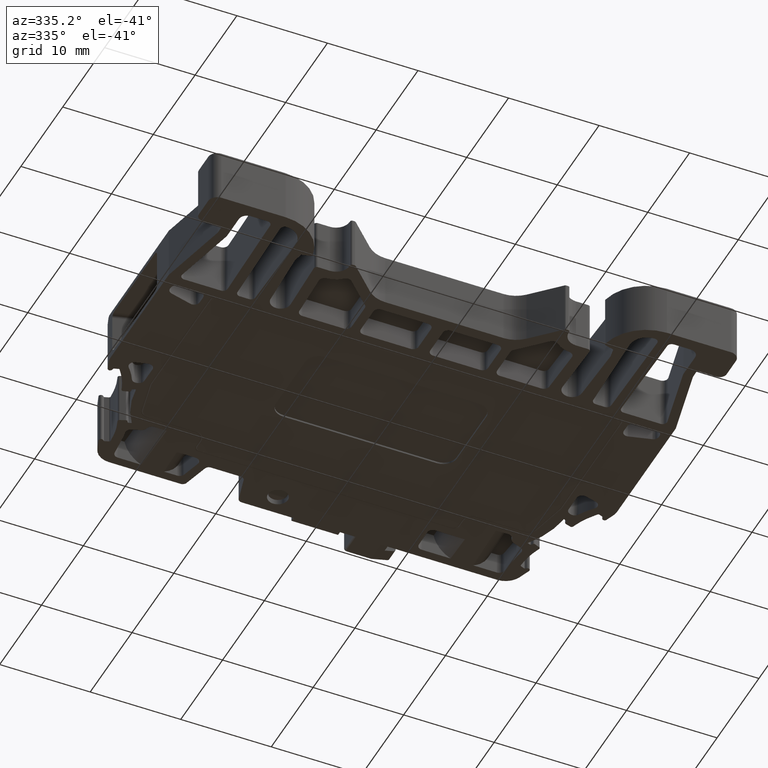
[diagram: clean part render]
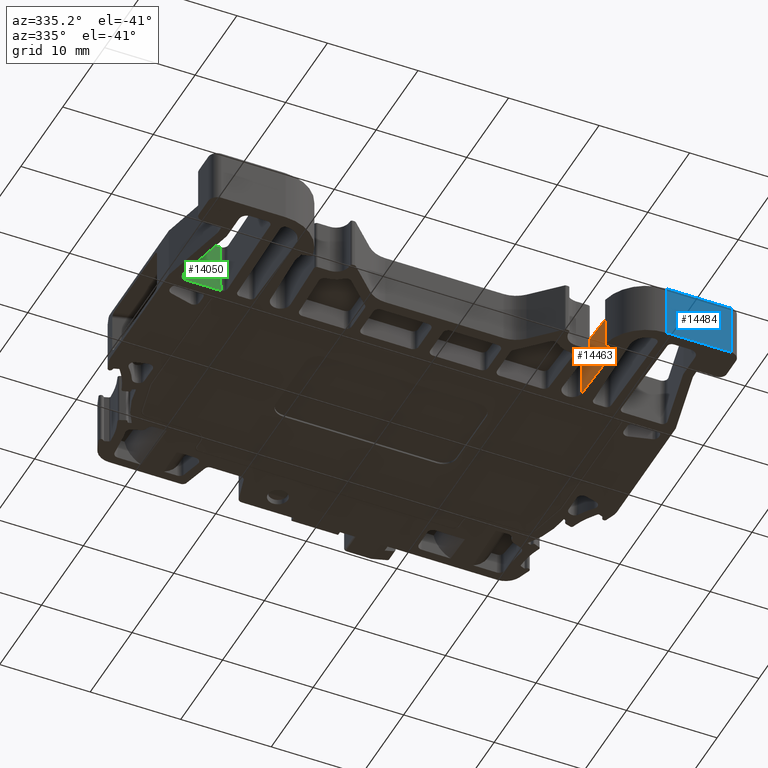
[diagram: same view with three faces highlighted in distinct colors, each labeled with its STEP entity id]
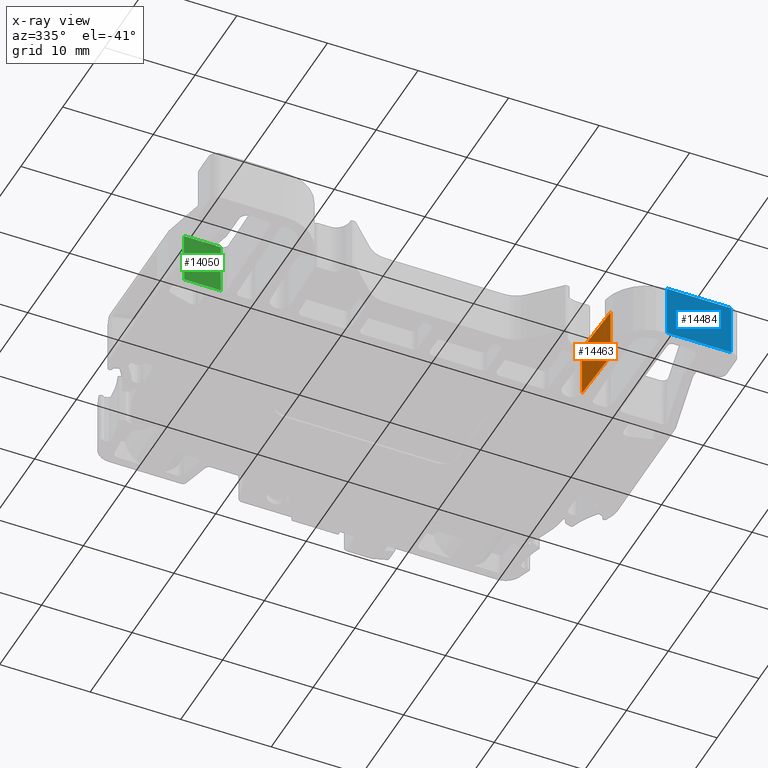
[diagram: x-ray of the same camera — body ghosted, the three highlighted faces saturated]
A machine part, auxiliary view with three faces highlighted in distinct colors.
The next image is the same camera in x-ray (body ghosted, the three faces saturated) — at least one of them is partly hidden behind the body in this view.
Their STEP definitions:

[orange] entity #14463 — the highlighted planar face has unit normal (-0.9992, -0.0394, 0).
#5998 = DIRECTION ( 'NONE',  ( 0.0000000000000000000, 0.0000000000000000000, 1.000000000000000000 ) ) ;
#6022 = CARTESIAN_POINT ( 'NONE',  ( 1036.133189839726100, 939.0288459127309600, -5.850000000000000500 ) ) ;
#6051 = LINE ( 'NONE', #6022, #22661 ) ;
#6076 = DIRECTION ( 'NONE',  ( 0.0000000000000000000, 0.0000000000000000000, 1.000000000000000000 ) ) ;
#6078 = LINE ( 'NONE', #6082, #31423 ) ;
#6082 = CARTESIAN_POINT ( 'NONE',  ( 1036.382435074819800, 932.7107192491199600, 0.0000000000000000000 ) ) ;
#6098 = CARTESIAN_POINT ( 'NONE',  ( 1036.382435074819800, 932.7107192491199600, -5.850000000000000500 ) ) ;
#6124 = LINE ( 'NONE', #6098, #31415 ) ;
#6126 = DIRECTION ( 'NONE',  ( 0.03941857001310068700, -0.9992227861383676800, 0.0000000000000000000 ) ) ;
#10522 = EDGE_LOOP ( 'NONE', ( #14132, #14053, #14062, #13946 ) ) ;
#11305 = EDGE_CURVE ( 'NONE', #18130, #12467, #6051, .T. ) ;
#11326 = EDGE_CURVE ( 'NONE', #18109, #12470, #6124, .T. ) ;
#11327 = EDGE_CURVE ( 'NONE', #12467, #12470, #6078, .T. ) ;
#12467 = VERTEX_POINT ( 'NONE', #41932 ) ;
#12470 = VERTEX_POINT ( 'NONE', #41937 ) ;
#13946 = ORIENTED_EDGE ( 'NONE', *, *, #11326, .T. ) ;
#14053 = ORIENTED_EDGE ( 'NONE', *, *, #11305, .F. ) ;
#14062 = ORIENTED_EDGE ( 'NONE', *, *, #14722, .T. ) ;
#14132 = ORIENTED_EDGE ( 'NONE', *, *, #11327, .F. ) ;
#14463 = ADVANCED_FACE ( 'NONE', ( #35616 ), #35618, .T. ) ;
#14722 = EDGE_CURVE ( 'NONE', #18130, #18109, #25907, .T. ) ;
#18109 = VERTEX_POINT ( 'NONE', #21409 ) ;
#18130 = VERTEX_POINT ( 'NONE', #21447 ) ;
#21409 = CARTESIAN_POINT ( 'NONE',  ( 1036.382435074819800, 932.7107192491199600, -5.850000000000000500 ) ) ;
#21447 = CARTESIAN_POINT ( 'NONE',  ( 1036.133189839726100, 939.0288459127309600, -5.850000000000000500 ) ) ;
#22661 = VECTOR ( 'NONE', #5998, 1000.000000000000000 ) ;
#25883 = CARTESIAN_POINT ( 'NONE',  ( 1036.382435074819800, 932.7107192491199600, -5.850000000000000500 ) ) ;
#25885 = DIRECTION ( 'NONE',  ( 0.03941857001310068700, -0.9992227861383676800, 0.0000000000000000000 ) ) ;
#25907 = LINE ( 'NONE', #25883, #26577 ) ;
#26577 = VECTOR ( 'NONE', #25885, 1000.000000000000100 ) ;
#31415 = VECTOR ( 'NONE', #6076, 1000.000000000000000 ) ;
#31423 = VECTOR ( 'NONE', #6126, 1000.000000000000100 ) ;
#32960 = AXIS2_PLACEMENT_3D ( 'NONE', #35580, #35573, #35582 ) ;
#35573 = DIRECTION ( 'NONE',  ( -0.9992227861383677900, -0.03941857001310069400, 0.0000000000000000000 ) ) ;
#35580 = CARTESIAN_POINT ( 'NONE',  ( 1036.382435074819800, 932.7107192491199600, -5.850000000000000500 ) ) ;
#35582 = DIRECTION ( 'NONE',  ( 0.03941857001310068700, -0.9992227861383676800, 0.0000000000000000000 ) ) ;
#35616 = FACE_OUTER_BOUND ( 'NONE', #10522, .T. ) ;
#35618 = PLANE ( 'NONE',  #32960 ) ;
#41932 = CARTESIAN_POINT ( 'NONE',  ( 1036.133189839726100, 939.0288459127309600, 0.0000000000000000000 ) ) ;
#41937 = CARTESIAN_POINT ( 'NONE',  ( 1036.382435074819800, 932.7107192491199600, 0.0000000000000000000 ) ) ;

[blue] entity #14484 — the highlighted planar face has unit normal (0, -1, 0).
#5970 = CARTESIAN_POINT ( 'NONE',  ( 1047.093419528580200, 927.0662631693588800, 0.0000000000000000000 ) ) ;
#5975 = DIRECTION ( 'NONE',  ( 0.9999999999999249500, 3.872296631259589400E-007, 0.0000000000000000000 ) ) ;
#5981 = LINE ( 'NONE', #5970, #22588 ) ;
#6106 = CARTESIAN_POINT ( 'NONE',  ( 1047.093419528580200, 927.0662631693588800, -5.850000000000000500 ) ) ;
#6111 = DIRECTION ( 'NONE',  ( 0.0000000000000000000, 0.0000000000000000000, 1.000000000000000000 ) ) ;
#6132 = LINE ( 'NONE', #6106, #31430 ) ;
#6260 = LINE ( 'NONE', #6321, #31383 ) ;
#6313 = DIRECTION ( 'NONE',  ( 0.0000000000000000000, 0.0000000000000000000, 1.000000000000000000 ) ) ;
#6321 = CARTESIAN_POINT ( 'NONE',  ( 1040.018416155973700, 927.0662604297081100, -5.850000000000000500 ) ) ;
#9227 = EDGE_LOOP ( 'NONE', ( #14119, #13948, #14144, #14116 ) ) ;
#11288 = EDGE_CURVE ( 'NONE', #12465, #12454, #5981, .T. ) ;
#11319 = EDGE_CURVE ( 'NONE', #18133, #12454, #6132, .T. ) ;
#11350 = EDGE_CURVE ( 'NONE', #18154, #12465, #6260, .T. ) ;
#12454 = VERTEX_POINT ( 'NONE', #41781 ) ;
#12465 = VERTEX_POINT ( 'NONE', #41829 ) ;
#13948 = ORIENTED_EDGE ( 'NONE', *, *, #11350, .F. ) ;
#14116 = ORIENTED_EDGE ( 'NONE', *, *, #11319, .T. ) ;
#14119 = ORIENTED_EDGE ( 'NONE', *, *, #11288, .F. ) ;
#14144 = ORIENTED_EDGE ( 'NONE', *, *, #14690, .T. ) ;
#14484 = ADVANCED_FACE ( 'NONE', ( #35711 ), #35677, .T. ) ;
#14690 = EDGE_CURVE ( 'NONE', #18154, #18133, #25799, .T. ) ;
#18133 = VERTEX_POINT ( 'NONE', #21393 ) ;
#18154 = VERTEX_POINT ( 'NONE', #21513 ) ;
#21393 = CARTESIAN_POINT ( 'NONE',  ( 1047.093419528580200, 927.0662631693588800, -5.850000000000000500 ) ) ;
#21513 = CARTESIAN_POINT ( 'NONE',  ( 1040.018416155973700, 927.0662604297081100, -5.850000000000000500 ) ) ;
#22588 = VECTOR ( 'NONE', #5975, 1000.000000000000100 ) ;
#25790 = CARTESIAN_POINT ( 'NONE',  ( 1047.093419528580200, 927.0662631693588800, -5.850000000000000500 ) ) ;
#25791 = DIRECTION ( 'NONE',  ( 0.9999999999999249500, 3.872296631259589400E-007, 0.0000000000000000000 ) ) ;
#25799 = LINE ( 'NONE', #25790, #26546 ) ;
#26546 = VECTOR ( 'NONE', #25791, 1000.000000000000100 ) ;
#31383 = VECTOR ( 'NONE', #6313, 1000.000000000000000 ) ;
#31430 = VECTOR ( 'NONE', #6111, 1000.000000000000000 ) ;
#33176 = AXIS2_PLACEMENT_3D ( 'NONE', #35685, #35713, #35700 ) ;
#35677 = PLANE ( 'NONE',  #33176 ) ;
#35685 = CARTESIAN_POINT ( 'NONE',  ( 1047.093419528580200, 927.0662631693588800, -5.850000000000000500 ) ) ;
#35700 = DIRECTION ( 'NONE',  ( 0.9999999999999249500, 3.872296631259589400E-007, 0.0000000000000000000 ) ) ;
#35711 = FACE_OUTER_BOUND ( 'NONE', #9227, .T. ) ;
#35713 = DIRECTION ( 'NONE',  ( 3.872296631259589900E-007, -0.9999999999999250600, 0.0000000000000000000 ) ) ;
#41781 = CARTESIAN_POINT ( 'NONE',  ( 1047.093419528580200, 927.0662631693588800, 0.0000000000000000000 ) ) ;
#41829 = CARTESIAN_POINT ( 'NONE',  ( 1040.018416155973700, 927.0662604297081100, 0.0000000000000000000 ) ) ;

[green] entity #14050 — the highlighted planar face has unit normal (0, 0.9998, -0.0175).
#1956 = CARTESIAN_POINT ( 'NONE',  ( 992.6359952497820100, 940.0662900422719300, 0.0000000000000000000 ) ) ;
#10374 = EDGE_LOOP ( 'NONE', ( #13260, #13319, #13277, #13261 ) ) ;
#12178 = VERTEX_POINT ( 'NONE', #41542 ) ;
#12190 = VERTEX_POINT ( 'NONE', #41524 ) ;
#13260 = ORIENTED_EDGE ( 'NONE', *, *, #13767, .T. ) ;
#13261 = ORIENTED_EDGE ( 'NONE', *, *, #14639, .F. ) ;
#13277 = ORIENTED_EDGE ( 'NONE', *, *, #14834, .F. ) ;
#13319 = ORIENTED_EDGE ( 'NONE', *, *, #14931, .T. ) ;
#13767 = EDGE_CURVE ( 'NONE', #12178, #12190, #16983, .T. ) ;
#14050 = ADVANCED_FACE ( 'NONE', ( #17536 ), #17533, .F. ) ;
#14639 = EDGE_CURVE ( 'NONE', #12178, #18026, #25628, .T. ) ;
#14834 = EDGE_CURVE ( 'NONE', #18026, #40083, #26257, .T. ) ;
#14931 = EDGE_CURVE ( 'NONE', #12190, #40083, #20893, .T. ) ;
#16963 = CARTESIAN_POINT ( 'NONE',  ( 996.7005425283960000, 940.0662900422719300, -4.691925657794289600E-016 ) ) ;
#16966 = DIRECTION ( 'NONE',  ( 0.0000000000000000000, 0.01745240643728355000, 0.9998476951563911600 ) ) ;
#16983 = LINE ( 'NONE', #16963, #32218 ) ;
#17520 = DIRECTION ( 'NONE',  ( 2.731064141193930600E-014, 0.9998476951563912700, -0.01745240643728355300 ) ) ;
#17524 = DIRECTION ( 'NONE',  ( 0.0000000000000000000, 0.01745240643728355300, 0.9998476951563912700 ) ) ;
#17533 = PLANE ( 'NONE',  #32659 ) ;
#17534 = CARTESIAN_POINT ( 'NONE',  ( 996.7005425283960000, 940.0662900422719300, 0.0000000000000000000 ) ) ;
#17536 = FACE_OUTER_BOUND ( 'NONE', #10374, .T. ) ;
#18026 = VERTEX_POINT ( 'NONE', #21354 ) ;
#20887 = CARTESIAN_POINT ( 'NONE',  ( 996.7005425283960000, 940.0662900422719300, 0.0000000000000000000 ) ) ;
#20893 = LINE ( 'NONE', #20887, #26902 ) ;
#20902 = DIRECTION ( 'NONE',  ( -1.000000000000000000, 2.731480158852344900E-014, 0.0000000000000000000 ) ) ;
#21354 = CARTESIAN_POINT ( 'NONE',  ( 992.6359952497820100, 939.9641779124419800, -5.850000000000000500 ) ) ;
#25628 = LINE ( 'NONE', #25637, #33604 ) ;
#25637 = CARTESIAN_POINT ( 'NONE',  ( 1012.414000328183900, 939.9641779124410700, -5.850000000000000500 ) ) ;
#25645 = DIRECTION ( 'NONE',  ( -1.000000000000000000, 2.731480158852344900E-014, 0.0000000000000000000 ) ) ;
#26223 = CARTESIAN_POINT ( 'NONE',  ( 992.6359952497820100, 940.0662900422719300, 0.0000000000000000000 ) ) ;
#26248 = DIRECTION ( 'NONE',  ( 4.767090190766689700E-016, 0.01745240643728355000, 0.9998476951563911600 ) ) ;
#26257 = LINE ( 'NONE', #26223, #26738 ) ;
#26738 = VECTOR ( 'NONE', #26248, 1000.000000000000100 ) ;
#26902 = VECTOR ( 'NONE', #20902, 1000.000000000000000 ) ;
#32218 = VECTOR ( 'NONE', #16966, 1000.000000000000100 ) ;
#32659 = AXIS2_PLACEMENT_3D ( 'NONE', #17534, #17520, #17524 ) ;
#33604 = VECTOR ( 'NONE', #25645, 1000.000000000000000 ) ;
#40083 = VERTEX_POINT ( 'NONE', #1956 ) ;
#41524 = CARTESIAN_POINT ( 'NONE',  ( 996.7005425283960000, 940.0662900422719300, 0.0000000000000000000 ) ) ;
#41542 = CARTESIAN_POINT ( 'NONE',  ( 996.7005425283960000, 939.9641779124419800, -5.850000000000000500 ) ) ;